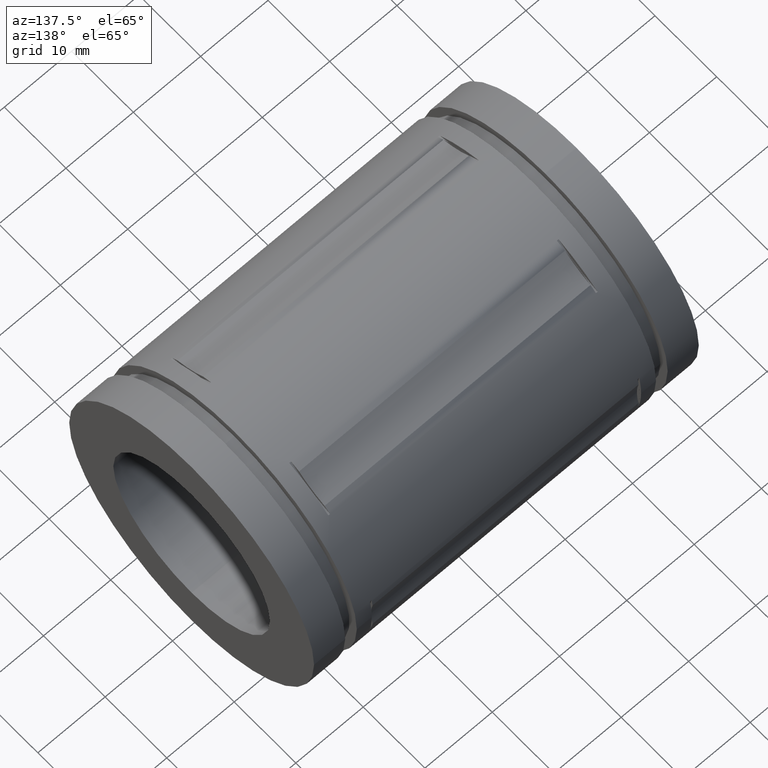
[diagram: clean part render]
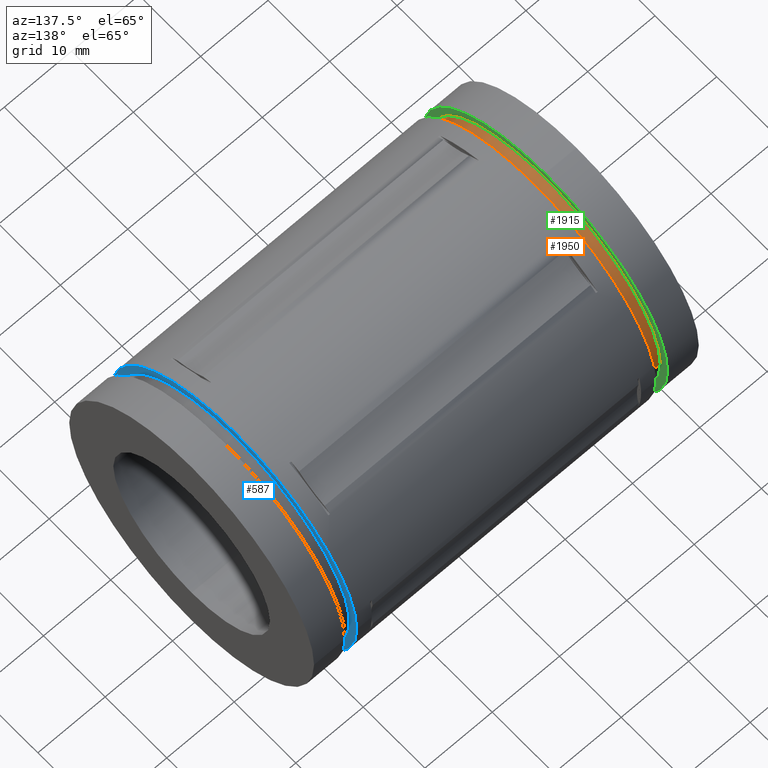
[diagram: same view with three faces highlighted in distinct colors, each labeled with its STEP entity id]
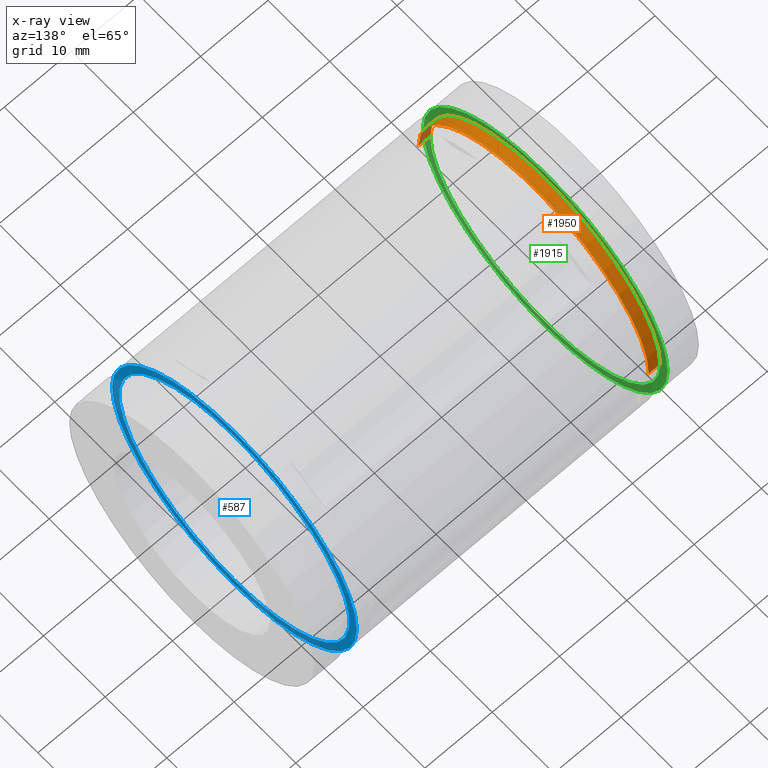
[diagram: x-ray of the same camera — body ghosted, the three highlighted faces saturated]
A machine part, auxiliary view with three faces highlighted in distinct colors.
The next image is the same camera in x-ray (body ghosted, the three faces saturated) — at least one of them is partly hidden behind the body in this view.
Their STEP definitions:

[orange] entity #1950 — the highlighted cylindrical surface (partial cylindrical patch) has radius 18.652 mm, axis along (1, 0, 0).
#30 = CARTESIAN_POINT ( 'NONE',  ( 0.2499881889763779800, 0.0000000000000000000, 0.0000000000000000000 ) ) ;
#107 = CARTESIAN_POINT ( 'NONE',  ( 0.1820866141732282500, 0.7343307086614173600, 0.0000000000000000000 ) ) ;
#116 = EDGE_CURVE ( 'NONE', #1347, #1776, #1838, .T. ) ;
#236 = EDGE_CURVE ( 'NONE', #1347, #1797, #1748, .T. ) ;
#246 = ORIENTED_EDGE ( 'NONE', *, *, #1260, .T. ) ;
#324 = CARTESIAN_POINT ( 'NONE',  ( 0.2499881889763780100, -0.7343307086614173600, 8.992957518778124300E-017 ) ) ;
#438 = DIRECTION ( 'NONE',  ( -1.000000000000000000, -2.325117247449076500E-017, -0.0000000000000000000 ) ) ;
#454 = CARTESIAN_POINT ( 'NONE',  ( 0.1820866141732282500, -0.7343307086614173600, 8.992957518778124300E-017 ) ) ;
#526 = DIRECTION ( 'NONE',  ( 0.0000000000000000000, 1.000000000000000000, 0.0000000000000000000 ) ) ;
#529 = DIRECTION ( 'NONE',  ( -1.000000000000000000, -2.325117247449076500E-017, -0.0000000000000000000 ) ) ;
#530 = CARTESIAN_POINT ( 'NONE',  ( 0.2499881889763779500, -3.969916804673708500E-034, 0.0000000000000000000 ) ) ;
#537 = DIRECTION ( 'NONE',  ( 1.000000000000000000, 2.325117247449076200E-017, 0.0000000000000000000 ) ) ;
#624 = AXIS2_PLACEMENT_3D ( 'NONE', #530, #529, #526 ) ;
#723 = CYLINDRICAL_SURFACE ( 'NONE', #831, 0.7343307086614173600 ) ;
#734 = VERTEX_POINT ( 'NONE', #1115 ) ;
#735 = DIRECTION ( 'NONE',  ( 0.0000000000000000000, 1.000000000000000000, 0.0000000000000000000 ) ) ;
#752 = FACE_OUTER_BOUND ( 'NONE', #1974, .T. ) ;
#826 = CARTESIAN_POINT ( 'NONE',  ( 0.1820866141732282500, -1.578791227037571400E-018, 0.0000000000000000000 ) ) ;
#831 = AXIS2_PLACEMENT_3D ( 'NONE', #30, #1723, #1281 ) ;
#892 = EDGE_CURVE ( 'NONE', #1776, #734, #1432, .T. ) ;
#899 = CARTESIAN_POINT ( 'NONE',  ( 0.2499881889763779500, 0.7343307086614173600, 0.0000000000000000000 ) ) ;
#936 = DIRECTION ( 'NONE',  ( 1.000000000000000000, 2.325117247449076200E-017, 0.0000000000000000000 ) ) ;
#995 = ORIENTED_EDGE ( 'NONE', *, *, #236, .T. ) ;
#1115 = CARTESIAN_POINT ( 'NONE',  ( 0.2499881889763779500, 0.7343307086614173600, 0.0000000000000000000 ) ) ;
#1260 = EDGE_CURVE ( 'NONE', #1797, #734, #1308, .T. ) ;
#1281 = DIRECTION ( 'NONE',  ( -4.650234494898153100E-017, 1.000000000000000000, 0.0000000000000000000 ) ) ;
#1308 = CIRCLE ( 'NONE', #624, 0.7343307086614173600 ) ;
#1347 = VERTEX_POINT ( 'NONE', #454 ) ;
#1362 = CARTESIAN_POINT ( 'NONE',  ( 0.2499881889763779500, -0.7343307086614173600, 8.992957518778124300E-017 ) ) ;
#1426 = VECTOR ( 'NONE', #936, 39.37007874015748100 ) ;
#1432 = LINE ( 'NONE', #899, #1426 ) ;
#1448 = ORIENTED_EDGE ( 'NONE', *, *, #892, .F. ) ;
#1482 = AXIS2_PLACEMENT_3D ( 'NONE', #826, #438, #735 ) ;
#1723 = DIRECTION ( 'NONE',  ( 1.000000000000000000, 2.325117247449076500E-017, 0.0000000000000000000 ) ) ;
#1746 = VECTOR ( 'NONE', #537, 39.37007874015748100 ) ;
#1748 = LINE ( 'NONE', #324, #1746 ) ;
#1768 = ORIENTED_EDGE ( 'NONE', *, *, #116, .F. ) ;
#1776 = VERTEX_POINT ( 'NONE', #107 ) ;
#1797 = VERTEX_POINT ( 'NONE', #1362 ) ;
#1838 = CIRCLE ( 'NONE', #1482, 0.7343307086614173600 ) ;
#1950 = ADVANCED_FACE ( 'NONE', ( #752 ), #723, .T. ) ;
#1974 = EDGE_LOOP ( 'NONE', ( #1768, #995, #246, #1448 ) ) ;

[blue] entity #587 — the highlighted planar face has unit normal (1, -0, 0).
#41 = CARTESIAN_POINT ( 'NONE',  ( 2.000011811023622200, 8.992957518778124300E-017, 0.7343307086614173600 ) ) ;
#97 = CARTESIAN_POINT ( 'NONE',  ( 2.000011811023621800, -0.7812500000000000000, 9.567553118338697000E-017 ) ) ;
#232 = EDGE_CURVE ( 'NONE', #1637, #1882, #1769, .T. ) ;
#281 = AXIS2_PLACEMENT_3D ( 'NONE', #611, #608, #606 ) ;
#295 = DIRECTION ( 'NONE',  ( 0.0000000000000000000, 1.000000000000000000, 0.0000000000000000000 ) ) ;
#296 = DIRECTION ( 'NONE',  ( 1.000000000000000000, 1.748382715945128500E-016, 0.0000000000000000000 ) ) ;
#304 = CARTESIAN_POINT ( 'NONE',  ( 2.000011811023621800, -7.164473722067962300E-032, 0.0000000000000000000 ) ) ;
#321 = AXIS2_PLACEMENT_3D ( 'NONE', #1354, #1328, #1322 ) ;
#376 = ORIENTED_EDGE ( 'NONE', *, *, #232, .T. ) ;
#506 = ORIENTED_EDGE ( 'NONE', *, *, #1198, .F. ) ;
#587 = ADVANCED_FACE ( 'NONE', ( #1569, #1555 ), #1420, .T. ) ;
#606 = DIRECTION ( 'NONE',  ( 0.0000000000000000000, 0.0000000000000000000, -1.000000000000000000 ) ) ;
#608 = DIRECTION ( 'NONE',  ( 1.000000000000000000, 0.0000000000000000000, 0.0000000000000000000 ) ) ;
#611 = CARTESIAN_POINT ( 'NONE',  ( 2.000011811023622200, 0.0000000000000000000, 0.0000000000000000000 ) ) ;
#726 = AXIS2_PLACEMENT_3D ( 'NONE', #304, #296, #295 ) ;
#763 = DIRECTION ( 'NONE',  ( 0.0000000000000000000, 1.000000000000000000, 0.0000000000000000000 ) ) ;
#764 = DIRECTION ( 'NONE',  ( 1.000000000000000000, 1.748382715945128500E-016, 0.0000000000000000000 ) ) ;
#766 = CARTESIAN_POINT ( 'NONE',  ( 2.000011811023621800, -7.164473722067962300E-032, 0.0000000000000000000 ) ) ;
#778 = CARTESIAN_POINT ( 'NONE',  ( 2.000011811023622200, 0.0000000000000000000, -0.7343307086614173600 ) ) ;
#863 = CARTESIAN_POINT ( 'NONE',  ( 2.000011811023621800, 0.7812500000000000000, 0.0000000000000000000 ) ) ;
#890 = EDGE_CURVE ( 'NONE', #1027, #1976, #1449, .T. ) ;
#895 = DIRECTION ( 'NONE',  ( 0.0000000000000000000, 0.0000000000000000000, -1.000000000000000000 ) ) ;
#897 = DIRECTION ( 'NONE',  ( 1.000000000000000000, 0.0000000000000000000, 0.0000000000000000000 ) ) ;
#898 = CARTESIAN_POINT ( 'NONE',  ( 2.000011811023622200, 0.0000000000000000000, 0.0000000000000000000 ) ) ;
#1012 = AXIS2_PLACEMENT_3D ( 'NONE', #898, #897, #895 ) ;
#1015 = EDGE_CURVE ( 'NONE', #1882, #1637, #1384, .T. ) ;
#1027 = VERTEX_POINT ( 'NONE', #778 ) ;
#1036 = EDGE_LOOP ( 'NONE', ( #1712, #376 ) ) ;
#1078 = AXIS2_PLACEMENT_3D ( 'NONE', #766, #764, #763 ) ;
#1198 = EDGE_CURVE ( 'NONE', #1976, #1027, #1327, .T. ) ;
#1210 = EDGE_LOOP ( 'NONE', ( #1932, #506 ) ) ;
#1322 = DIRECTION ( 'NONE',  ( 0.0000000000000000000, 0.0000000000000000000, -1.000000000000000000 ) ) ;
#1327 = CIRCLE ( 'NONE', #281, 0.7343307086614173600 ) ;
#1328 = DIRECTION ( 'NONE',  ( 1.000000000000000000, -0.0000000000000000000, 0.0000000000000000000 ) ) ;
#1354 = CARTESIAN_POINT ( 'NONE',  ( 2.000011811023622200, -0.7906250000000012400, 0.7906250000000001300 ) ) ;
#1384 = CIRCLE ( 'NONE', #1078, 0.7812500000000000000 ) ;
#1420 = PLANE ( 'NONE',  #321 ) ;
#1449 = CIRCLE ( 'NONE', #1012, 0.7343307086614173600 ) ;
#1555 = FACE_BOUND ( 'NONE', #1210, .T. ) ;
#1569 = FACE_OUTER_BOUND ( 'NONE', #1036, .T. ) ;
#1637 = VERTEX_POINT ( 'NONE', #97 ) ;
#1712 = ORIENTED_EDGE ( 'NONE', *, *, #1015, .T. ) ;
#1769 = CIRCLE ( 'NONE', #726, 0.7812500000000000000 ) ;
#1882 = VERTEX_POINT ( 'NONE', #863 ) ;
#1932 = ORIENTED_EDGE ( 'NONE', *, *, #890, .F. ) ;
#1976 = VERTEX_POINT ( 'NONE', #41 ) ;

[green] entity #1915 — the highlighted planar face has unit normal (1, -0, 0).
#7 = CARTESIAN_POINT ( 'NONE',  ( 0.1820866141732283000, -0.7906250000000012400, 0.7906250000000001300 ) ) ;
#45 = EDGE_LOOP ( 'NONE', ( #1359, #1579 ) ) ;
#58 = ORIENTED_EDGE ( 'NONE', *, *, #65, .F. ) ;
#65 = EDGE_CURVE ( 'NONE', #787, #2001, #1861, .T. ) ;
#66 = DIRECTION ( 'NONE',  ( 0.0000000000000000000, 1.000000000000000000, 0.0000000000000000000 ) ) ;
#67 = DIRECTION ( 'NONE',  ( -1.000000000000000000, -2.325117247449076500E-017, -0.0000000000000000000 ) ) ;
#68 = CARTESIAN_POINT ( 'NONE',  ( 0.1820866141732282500, -1.578791227037571400E-018, 0.0000000000000000000 ) ) ;
#107 = CARTESIAN_POINT ( 'NONE',  ( 0.1820866141732282500, 0.7343307086614173600, 0.0000000000000000000 ) ) ;
#116 = EDGE_CURVE ( 'NONE', #1347, #1776, #1838, .T. ) ;
#172 = DIRECTION ( 'NONE',  ( 0.0000000000000000000, 0.0000000000000000000, -1.000000000000000000 ) ) ;
#348 = DIRECTION ( 'NONE',  ( 0.0000000000000000000, 0.0000000000000000000, -1.000000000000000000 ) ) ;
#349 = DIRECTION ( 'NONE',  ( -1.000000000000000000, -0.0000000000000000000, -0.0000000000000000000 ) ) ;
#352 = CARTESIAN_POINT ( 'NONE',  ( 0.1820866141732282500, 0.0000000000000000000, 0.0000000000000000000 ) ) ;
#438 = DIRECTION ( 'NONE',  ( -1.000000000000000000, -2.325117247449076500E-017, -0.0000000000000000000 ) ) ;
#454 = CARTESIAN_POINT ( 'NONE',  ( 0.1820866141732282500, -0.7343307086614173600, 8.992957518778124300E-017 ) ) ;
#481 = EDGE_LOOP ( 'NONE', ( #859, #58 ) ) ;
#581 = AXIS2_PLACEMENT_3D ( 'NONE', #352, #349, #348 ) ;
#661 = AXIS2_PLACEMENT_3D ( 'NONE', #68, #67, #66 ) ;
#735 = DIRECTION ( 'NONE',  ( 0.0000000000000000000, 1.000000000000000000, 0.0000000000000000000 ) ) ;
#771 = CARTESIAN_POINT ( 'NONE',  ( 0.1820866141732282500, 0.0000000000000000000, -0.7812500000000000000 ) ) ;
#787 = VERTEX_POINT ( 'NONE', #1093 ) ;
#816 = DIRECTION ( 'NONE',  ( -1.000000000000000000, -0.0000000000000000000, -0.0000000000000000000 ) ) ;
#826 = CARTESIAN_POINT ( 'NONE',  ( 0.1820866141732282500, -1.578791227037571400E-018, 0.0000000000000000000 ) ) ;
#837 = FACE_OUTER_BOUND ( 'NONE', #481, .T. ) ;
#842 = FACE_BOUND ( 'NONE', #45, .T. ) ;
#859 = ORIENTED_EDGE ( 'NONE', *, *, #1419, .F. ) ;
#981 = DIRECTION ( 'NONE',  ( 0.0000000000000000000, 0.0000000000000000000, -1.000000000000000000 ) ) ;
#1025 = CIRCLE ( 'NONE', #661, 0.7343307086614173600 ) ;
#1081 = PLANE ( 'NONE',  #1759 ) ;
#1093 = CARTESIAN_POINT ( 'NONE',  ( 0.1820866141732282500, 9.567553118338697000E-017, 0.7812500000000000000 ) ) ;
#1212 = CIRCLE ( 'NONE', #581, 0.7812500000000000000 ) ;
#1256 = CARTESIAN_POINT ( 'NONE',  ( 0.1820866141732282500, 0.0000000000000000000, 0.0000000000000000000 ) ) ;
#1261 = DIRECTION ( 'NONE',  ( 1.000000000000000000, -0.0000000000000000000, 0.0000000000000000000 ) ) ;
#1285 = AXIS2_PLACEMENT_3D ( 'NONE', #1256, #816, #981 ) ;
#1347 = VERTEX_POINT ( 'NONE', #454 ) ;
#1359 = ORIENTED_EDGE ( 'NONE', *, *, #1654, .T. ) ;
#1419 = EDGE_CURVE ( 'NONE', #2001, #787, #1212, .T. ) ;
#1482 = AXIS2_PLACEMENT_3D ( 'NONE', #826, #438, #735 ) ;
#1579 = ORIENTED_EDGE ( 'NONE', *, *, #116, .T. ) ;
#1654 = EDGE_CURVE ( 'NONE', #1776, #1347, #1025, .T. ) ;
#1759 = AXIS2_PLACEMENT_3D ( 'NONE', #7, #1261, #172 ) ;
#1776 = VERTEX_POINT ( 'NONE', #107 ) ;
#1838 = CIRCLE ( 'NONE', #1482, 0.7343307086614173600 ) ;
#1861 = CIRCLE ( 'NONE', #1285, 0.7812500000000000000 ) ;
#1915 = ADVANCED_FACE ( 'NONE', ( #837, #842 ), #1081, .T. ) ;
#2001 = VERTEX_POINT ( 'NONE', #771 ) ;